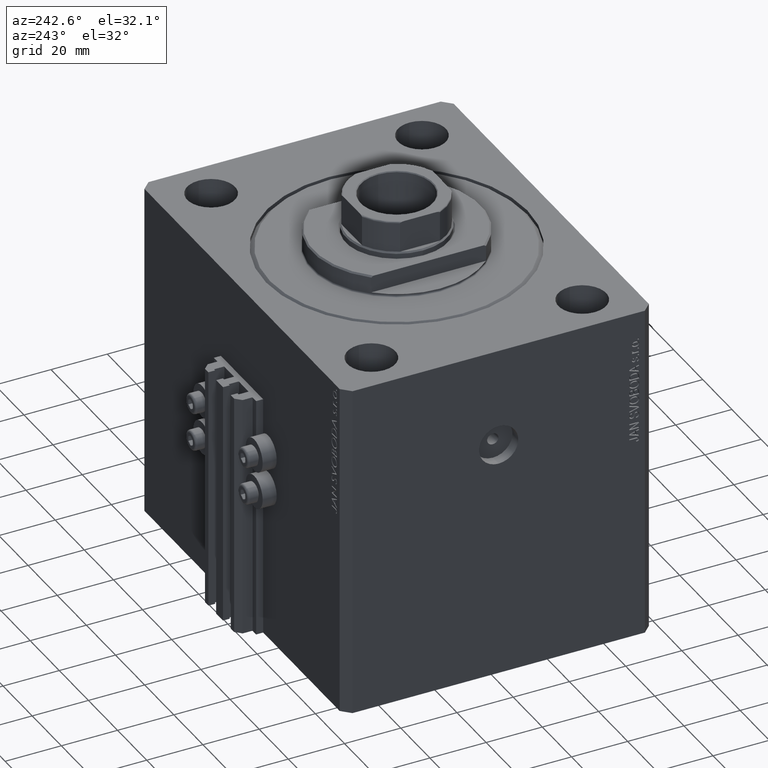
[diagram: clean part render]
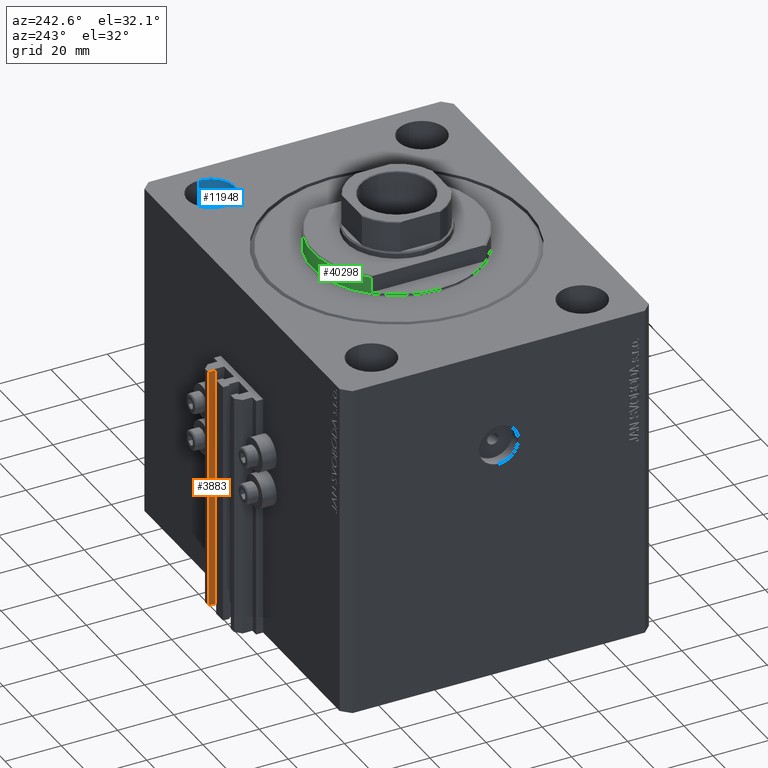
[diagram: same view with three faces highlighted in distinct colors, each labeled with its STEP entity id]
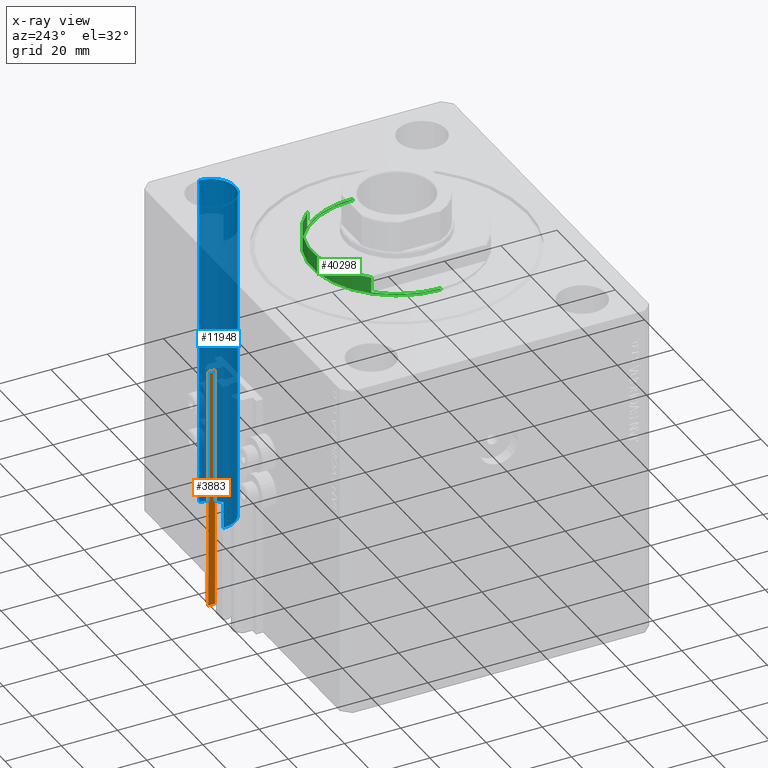
[diagram: x-ray of the same camera — body ghosted, the three highlighted faces saturated]
A machine part, auxiliary view with three faces highlighted in distinct colors.
The next image is the same camera in x-ray (body ghosted, the three faces saturated) — at least one of them is partly hidden behind the body in this view.
Their STEP definitions:

[orange] entity #3883 — the highlighted planar face has unit normal (-1, 0, 0).
#339 = VECTOR ( 'NONE', #27939, 1000.000000000000000 ) ;
#1698 = CARTESIAN_POINT ( 'NONE',  ( 7.649999999999998579, 60.60000000000002984, -120.0000000000000000 ) ) ;
#2653 = VECTOR ( 'NONE', #42641, 1000.000000000000000 ) ;
#3449 = ORIENTED_EDGE ( 'NONE', *, *, #9435, .T. ) ;
#3883 = ADVANCED_FACE ( 'NONE', ( #40398 ), #22176, .T. ) ;
#3987 = CARTESIAN_POINT ( 'NONE',  ( 7.649999999999998579, 63.00000000000002842, -120.0000000000000000 ) ) ;
#6090 = VECTOR ( 'NONE', #39063, 1000.000000000000000 ) ;
#6196 = EDGE_LOOP ( 'NONE', ( #32842, #37682, #3449, #28483 ) ) ;
#6383 = CARTESIAN_POINT ( 'NONE',  ( 7.649999999999998579, 63.00000000000002842, -33.00000000000000000 ) ) ;
#8167 = EDGE_CURVE ( 'NONE', #27808, #36294, #45987, .T. ) ;
#8984 = EDGE_CURVE ( 'NONE', #31468, #32217, #28040, .T. ) ;
#9435 = EDGE_CURVE ( 'NONE', #27808, #31468, #19069, .T. ) ;
#10540 = CARTESIAN_POINT ( 'NONE',  ( 7.649999999999998579, 63.00000000000002842, -120.0000000000000000 ) ) ;
#13792 = LINE ( 'NONE', #6383, #339 ) ;
#14100 = VECTOR ( 'NONE', #43993, 1000.000000000000000 ) ;
#14297 = DIRECTION ( 'NONE',  ( -1.000000000000000000, 0.000000000000000000, 0.000000000000000000 ) ) ;
#15006 = DIRECTION ( 'NONE',  ( 0.000000000000000000, 0.000000000000000000, 1.000000000000000000 ) ) ;
#15392 = CARTESIAN_POINT ( 'NONE',  ( 7.649999999999998579, 60.60000000000002984, -120.0000000000000000 ) ) ;
#15490 = CARTESIAN_POINT ( 'NONE',  ( 7.649999999999998579, 63.00000000000002842, -120.0000000000000000 ) ) ;
#19069 = LINE ( 'NONE', #15490, #14100 ) ;
#22176 = PLANE ( 'NONE',  #23942 ) ;
#22956 = CARTESIAN_POINT ( 'NONE',  ( 7.649999999999998579, 63.00000000000002842, -33.00000000000000000 ) ) ;
#23942 = AXIS2_PLACEMENT_3D ( 'NONE', #3987, #14297, #15006 ) ;
#27808 = VERTEX_POINT ( 'NONE', #32434 ) ;
#27939 = DIRECTION ( 'NONE',  ( 0.000000000000000000, -1.000000000000000000, 0.000000000000000000 ) ) ;
#28040 = LINE ( 'NONE', #1698, #2653 ) ;
#28483 = ORIENTED_EDGE ( 'NONE', *, *, #8984, .T. ) ;
#31468 = VERTEX_POINT ( 'NONE', #15392 ) ;
#32217 = VERTEX_POINT ( 'NONE', #33127 ) ;
#32434 = CARTESIAN_POINT ( 'NONE',  ( 7.649999999999998579, 63.00000000000002842, -120.0000000000000000 ) ) ;
#32842 = ORIENTED_EDGE ( 'NONE', *, *, #45558, .F. ) ;
#33127 = CARTESIAN_POINT ( 'NONE',  ( 7.649999999999998579, 60.60000000000002984, -33.00000000000000000 ) ) ;
#36294 = VERTEX_POINT ( 'NONE', #22956 ) ;
#37682 = ORIENTED_EDGE ( 'NONE', *, *, #8167, .F. ) ;
#39063 = DIRECTION ( 'NONE',  ( 0.000000000000000000, 0.000000000000000000, 1.000000000000000000 ) ) ;
#40398 = FACE_OUTER_BOUND ( 'NONE', #6196, .T. ) ;
#42641 = DIRECTION ( 'NONE',  ( 0.000000000000000000, 0.000000000000000000, 1.000000000000000000 ) ) ;
#43993 = DIRECTION ( 'NONE',  ( 0.000000000000000000, -1.000000000000000000, 0.000000000000000000 ) ) ;
#45558 = EDGE_CURVE ( 'NONE', #36294, #32217, #13792, .T. ) ;
#45987 = LINE ( 'NONE', #10540, #6090 ) ;

[blue] entity #11948 — the highlighted cylindrical surface (edge-blend (fillet) strip) has radius 8.5 mm, axis along (0, 0, 1).
#1 = DIRECTION ( 'NONE',  ( -0.000000000000000000, -0.000000000000000000, 1.000000000000000000 ) ) ;
#207 = ORIENTED_EDGE ( 'NONE', *, *, #11949, .F. ) ;
#238 = CYLINDRICAL_SURFACE ( 'NONE', #30987, 8.499999999999992895 ) ;
#420 = VECTOR ( 'NONE', #43815, 1000.000000000000000 ) ;
#683 = CARTESIAN_POINT ( 'NONE',  ( 55.00000000000000711, 37.49999999999998579, -120.0000000000000000 ) ) ;
#2090 = EDGE_CURVE ( 'NONE', #18897, #32428, #38023, .T. ) ;
#5164 = DIRECTION ( 'NONE',  ( 1.000000000000000000, 0.000000000000000000, 0.000000000000000000 ) ) ;
#6720 = CARTESIAN_POINT ( 'NONE',  ( 55.00000000000000711, 37.49999999999998579, -144.0416305603426395 ) ) ;
#6843 = ORIENTED_EDGE ( 'NONE', *, *, #32844, .T. ) ;
#7047 = VECTOR ( 'NONE', #30367, 1000.000000000000000 ) ;
#9345 = VERTEX_POINT ( 'NONE', #39710 ) ;
#11948 = ADVANCED_FACE ( 'NONE', ( #46936 ), #238, .F. ) ;
#11949 = EDGE_CURVE ( 'NONE', #35537, #9345, #14372, .T. ) ;
#11997 = CARTESIAN_POINT ( 'NONE',  ( 46.50000000000001421, 37.49999999999998579, 0.000000000000000000 ) ) ;
#14140 = DIRECTION ( 'NONE',  ( 1.000000000000000000, 0.000000000000000000, 0.000000000000000000 ) ) ;
#14372 = LINE ( 'NONE', #14852, #420 ) ;
#14852 = CARTESIAN_POINT ( 'NONE',  ( 63.50000000000000000, 37.49999999999998579, -144.0416305603426395 ) ) ;
#16417 = DIRECTION ( 'NONE',  ( 0.000000000000000000, 0.000000000000000000, 1.000000000000000000 ) ) ;
#16899 = CIRCLE ( 'NONE', #43642, 8.499999999999992895 ) ;
#18897 = VERTEX_POINT ( 'NONE', #44257 ) ;
#23355 = CARTESIAN_POINT ( 'NONE',  ( 55.00000000000000711, 37.49999999999998579, 0.000000000000000000 ) ) ;
#24168 = ORIENTED_EDGE ( 'NONE', *, *, #44321, .T. ) ;
#29903 = DIRECTION ( 'NONE',  ( -0.000000000000000000, -0.000000000000000000, -1.000000000000000000 ) ) ;
#30367 = DIRECTION ( 'NONE',  ( -0.000000000000000000, -0.000000000000000000, 1.000000000000000000 ) ) ;
#30908 = CIRCLE ( 'NONE', #33197, 8.499999999999992895 ) ;
#30987 = AXIS2_PLACEMENT_3D ( 'NONE', #6720, #1, #14140 ) ;
#32428 = VERTEX_POINT ( 'NONE', #11997 ) ;
#32844 = EDGE_CURVE ( 'NONE', #35537, #18897, #16899, .T. ) ;
#33197 = AXIS2_PLACEMENT_3D ( 'NONE', #23355, #16417, #5164 ) ;
#34930 = EDGE_LOOP ( 'NONE', ( #6843, #41467, #24168, #207 ) ) ;
#35537 = VERTEX_POINT ( 'NONE', #46775 ) ;
#37788 = CARTESIAN_POINT ( 'NONE',  ( 46.50000000000001421, 37.49999999999998579, -144.0416305603426395 ) ) ;
#38023 = LINE ( 'NONE', #37788, #7047 ) ;
#39710 = CARTESIAN_POINT ( 'NONE',  ( 63.50000000000000000, 37.49999999999998579, 0.000000000000000000 ) ) ;
#40220 = DIRECTION ( 'NONE',  ( 1.000000000000000000, 0.000000000000000000, 0.000000000000000000 ) ) ;
#41467 = ORIENTED_EDGE ( 'NONE', *, *, #2090, .T. ) ;
#43642 = AXIS2_PLACEMENT_3D ( 'NONE', #683, #29903, #40220 ) ;
#43815 = DIRECTION ( 'NONE',  ( -0.000000000000000000, -0.000000000000000000, 1.000000000000000000 ) ) ;
#44257 = CARTESIAN_POINT ( 'NONE',  ( 46.50000000000001421, 37.49999999999998579, -120.0000000000000000 ) ) ;
#44321 = EDGE_CURVE ( 'NONE', #32428, #9345, #30908, .T. ) ;
#46775 = CARTESIAN_POINT ( 'NONE',  ( 63.50000000000000000, 37.49999999999998579, -120.0000000000000000 ) ) ;
#46936 = FACE_OUTER_BOUND ( 'NONE', #34930, .T. ) ;

[green] entity #40298 — the highlighted cylindrical surface (partial cylindrical patch) has radius 30 mm, axis along (0, 0, -1).
#372 = AXIS2_PLACEMENT_3D ( 'NONE', #16622, #20444, #10145 ) ;
#1020 = CARTESIAN_POINT ( 'NONE',  ( 0.000000000000000000, 0.000000000000000000, -1.000000000000000000 ) ) ;
#2101 = DIRECTION ( 'NONE',  ( -0.000000000000000000, -0.000000000000000000, 1.000000000000000000 ) ) ;
#3169 = CARTESIAN_POINT ( 'NONE',  ( -30.00000000000000000, 3.673940397442059178E-15, -1.000000000000000000 ) ) ;
#3173 = ORIENTED_EDGE ( 'NONE', *, *, #45810, .F. ) ;
#3279 = ORIENTED_EDGE ( 'NONE', *, *, #46632, .F. ) ;
#4260 = DIRECTION ( 'NONE',  ( -0.000000000000000000, -0.000000000000000000, 1.000000000000000000 ) ) ;
#4319 = VERTEX_POINT ( 'NONE', #6055 ) ;
#5566 = VERTEX_POINT ( 'NONE', #34220 ) ;
#5618 = DIRECTION ( 'NONE',  ( -0.000000000000000000, -0.000000000000000000, 1.000000000000000000 ) ) ;
#6055 = CARTESIAN_POINT ( 'NONE',  ( -30.00000000000000000, 3.673940397442059178E-15, -0.4999999999999995559 ) ) ;
#6224 = EDGE_CURVE ( 'NONE', #4319, #15560, #46951, .T. ) ;
#6255 = CARTESIAN_POINT ( 'NONE',  ( 0.000000000000000000, 0.000000000000000000, -6.500000000000006217 ) ) ;
#6803 = CARTESIAN_POINT ( 'NONE',  ( 22.00000000000000000, 20.39607805437114507, -6.500000000000007994 ) ) ;
#7739 = DIRECTION ( 'NONE',  ( 0.000000000000000000, 0.000000000000000000, -1.000000000000000000 ) ) ;
#8095 = FACE_OUTER_BOUND ( 'NONE', #42352, .T. ) ;
#8615 = ORIENTED_EDGE ( 'NONE', *, *, #35864, .T. ) ;
#9452 = LINE ( 'NONE', #42726, #41679 ) ;
#10145 = DIRECTION ( 'NONE',  ( -1.000000000000000000, 0.000000000000000000, 0.000000000000000000 ) ) ;
#10325 = DIRECTION ( 'NONE',  ( -1.000000000000000000, -8.881784197001252323E-16, 0.000000000000000000 ) ) ;
#10975 = EDGE_CURVE ( 'NONE', #19790, #5566, #20281, .T. ) ;
#11475 = DIRECTION ( 'NONE',  ( -0.000000000000000000, -0.000000000000000000, -1.000000000000000000 ) ) ;
#11839 = VERTEX_POINT ( 'NONE', #28046 ) ;
#11885 = AXIS2_PLACEMENT_3D ( 'NONE', #6255, #35715, #10325 ) ;
#15299 = EDGE_CURVE ( 'NONE', #5566, #31990, #18043, .T. ) ;
#15560 = VERTEX_POINT ( 'NONE', #41491 ) ;
#16112 = ORIENTED_EDGE ( 'NONE', *, *, #17727, .F. ) ;
#16368 = AXIS2_PLACEMENT_3D ( 'NONE', #26307, #11475, #40933 ) ;
#16622 = CARTESIAN_POINT ( 'NONE',  ( 0.000000000000000000, 0.000000000000000000, -1.000000000000000000 ) ) ;
#17727 = EDGE_CURVE ( 'NONE', #11839, #15560, #19816, .T. ) ;
#18043 = LINE ( 'NONE', #35557, #43439 ) ;
#18518 = VECTOR ( 'NONE', #35259, 1000.000000000000000 ) ;
#19377 = VERTEX_POINT ( 'NONE', #3169 ) ;
#19790 = VERTEX_POINT ( 'NONE', #6803 ) ;
#19816 = LINE ( 'NONE', #30377, #45394 ) ;
#20281 = CIRCLE ( 'NONE', #11885, 30.00000000000000000 ) ;
#20444 = DIRECTION ( 'NONE',  ( 0.000000000000000000, 0.000000000000000000, -1.000000000000000000 ) ) ;
#21423 = AXIS2_PLACEMENT_3D ( 'NONE', #1020, #7739, #30246 ) ;
#22488 = AXIS2_PLACEMENT_3D ( 'NONE', #29642, #4260, #37076 ) ;
#24759 = ORIENTED_EDGE ( 'NONE', *, *, #6224, .T. ) ;
#25600 = CIRCLE ( 'NONE', #372, 30.00000000000000000 ) ;
#26307 = CARTESIAN_POINT ( 'NONE',  ( 0.000000000000000000, 0.000000000000000000, -0.4999999999999995559 ) ) ;
#27994 = ORIENTED_EDGE ( 'NONE', *, *, #15299, .T. ) ;
#28046 = CARTESIAN_POINT ( 'NONE',  ( 30.00000000000000000, 0.000000000000000000, -1.000000000000000000 ) ) ;
#29642 = CARTESIAN_POINT ( 'NONE',  ( 0.000000000000000000, 0.000000000000000000, -7.000000000000000000 ) ) ;
#29846 = CARTESIAN_POINT ( 'NONE',  ( -22.00000000000000000, 20.39607805437114152, -1.000000000000000000 ) ) ;
#30117 = CYLINDRICAL_SURFACE ( 'NONE', #22488, 30.00000000000000000 ) ;
#30246 = DIRECTION ( 'NONE',  ( -1.000000000000000000, 0.000000000000000000, 0.000000000000000000 ) ) ;
#30377 = CARTESIAN_POINT ( 'NONE',  ( 30.00000000000000000, 0.000000000000000000, -7.000000000000000000 ) ) ;
#31465 = EDGE_CURVE ( 'NONE', #47029, #11839, #42098, .T. ) ;
#31990 = VERTEX_POINT ( 'NONE', #29846 ) ;
#33916 = CARTESIAN_POINT ( 'NONE',  ( 22.00000000000000000, 20.39607805437114152, -1.000000000000000000 ) ) ;
#34220 = CARTESIAN_POINT ( 'NONE',  ( -22.00000000000000000, 20.39607805437114507, -6.500000000000007994 ) ) ;
#34551 = ORIENTED_EDGE ( 'NONE', *, *, #10975, .T. ) ;
#35259 = DIRECTION ( 'NONE',  ( -0.000000000000000000, -0.000000000000000000, 1.000000000000000000 ) ) ;
#35557 = CARTESIAN_POINT ( 'NONE',  ( -22.00000000000000000, 20.39607805437114152, -7.000000000000000000 ) ) ;
#35715 = DIRECTION ( 'NONE',  ( 0.000000000000000000, 0.000000000000000000, 1.000000000000000000 ) ) ;
#35864 = EDGE_CURVE ( 'NONE', #19377, #4319, #42673, .T. ) ;
#35963 = CARTESIAN_POINT ( 'NONE',  ( -30.00000000000000000, 3.673940397442059178E-15, -7.000000000000000000 ) ) ;
#37076 = DIRECTION ( 'NONE',  ( 1.000000000000000000, 0.000000000000000000, 0.000000000000000000 ) ) ;
#39181 = ORIENTED_EDGE ( 'NONE', *, *, #31465, .F. ) ;
#40298 = ADVANCED_FACE ( 'NONE', ( #8095 ), #30117, .T. ) ;
#40933 = DIRECTION ( 'NONE',  ( 1.000000000000000000, 0.000000000000000000, 0.000000000000000000 ) ) ;
#41491 = CARTESIAN_POINT ( 'NONE',  ( 30.00000000000000000, 0.000000000000000000, -0.4999999999999995559 ) ) ;
#41679 = VECTOR ( 'NONE', #5618, 1000.000000000000000 ) ;
#42098 = CIRCLE ( 'NONE', #21423, 30.00000000000000000 ) ;
#42352 = EDGE_LOOP ( 'NONE', ( #3173, #8615, #24759, #16112, #39181, #3279, #34551, #27994 ) ) ;
#42673 = LINE ( 'NONE', #35963, #18518 ) ;
#42726 = CARTESIAN_POINT ( 'NONE',  ( 22.00000000000000000, 20.39607805437114152, -7.000000000000000000 ) ) ;
#43439 = VECTOR ( 'NONE', #46318, 1000.000000000000000 ) ;
#45394 = VECTOR ( 'NONE', #2101, 1000.000000000000000 ) ;
#45810 = EDGE_CURVE ( 'NONE', #19377, #31990, #25600, .T. ) ;
#46318 = DIRECTION ( 'NONE',  ( -0.000000000000000000, -0.000000000000000000, 1.000000000000000000 ) ) ;
#46632 = EDGE_CURVE ( 'NONE', #19790, #47029, #9452, .T. ) ;
#46951 = CIRCLE ( 'NONE', #16368, 30.00000000000000000 ) ;
#47029 = VERTEX_POINT ( 'NONE', #33916 ) ;